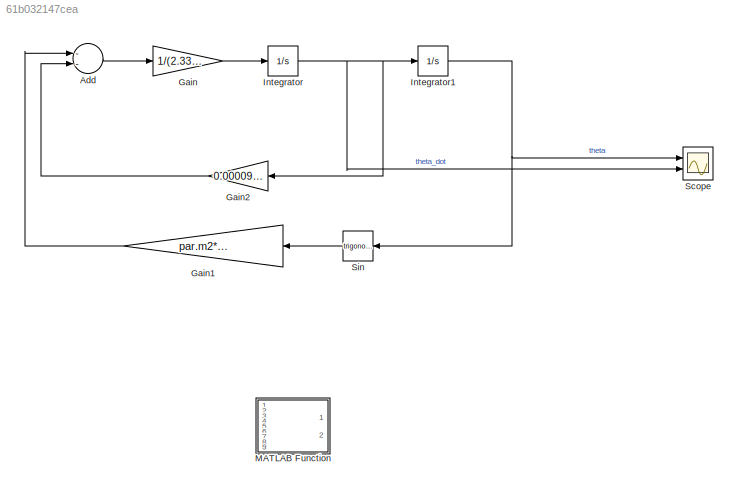
MODEL slx_61b032147cea
KIND model
CONFIG AbsTol = auto
CONFIG EnableMultiTasking = off
CONFIG FixedStep = auto
CONFIG MaxStep = auto
CONFIG MinStep = auto
CONFIG RelTol = 1e-3
CONFIG SampleTimeConstraint = Unconstrained
CONFIG Solver = VariableStepAuto
CONFIG SolverName = VariableStepAuto
CONFIG StartTime = 0.0
CONFIG StopTime = 60
BLOCK [Sum] Add
  InputSameDT = off
  Inputs = --
  OutDataTypeStr = Inherit: Inherit via internal rule
  Ports = [2, 1]
  SaturateOnIntegerOverflow = off
BLOCK [Gain] Gain
  Gain = 1/(2.3318e-4)
  OutDataTypeStr = Inherit: Inherit via internal rule
  ParamDataTypeStr = Inherit: Inherit via internal rule
  SaturateOnIntegerOverflow = off
BLOCK [Gain] Gain1
  Gain = par.m2*par.g*par.c2
  OutDataTypeStr = Inherit: Inherit via internal rule
  ParamDataTypeStr = Inherit: Inherit via internal rule
  SaturateOnIntegerOverflow = off
BLOCK [Gain] Gain2
  Gain = 0.000093842
  OutDataTypeStr = Inherit: Inherit via internal rule
  ParamDataTypeStr = Inherit: Inherit via internal rule
  SaturateOnIntegerOverflow = off
BLOCK [Integrator] Integrator
  Ports = [1, 1]
BLOCK [Integrator] Integrator1
  InitialCondition = -pi/2
  Ports = [1, 1]
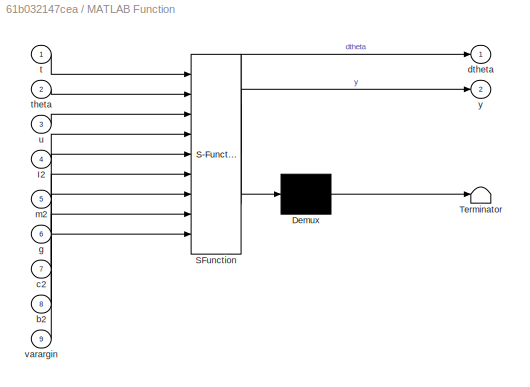
BLOCK [SubSystem] MATLAB Function
  ErrorFcn = Stateflow.Translate.translate
  PermitHierarchicalResolution = ExplicitOnly
  Ports = [9, 2]
  RequestExecContextInheritance = off
  SFBlockType = MATLAB Function
  TreatAsAtomicUnit = on
BLOCK [Demux] MATLAB Function/ Demux 
  Outputs = 1
  Ports = [1, 1]
BLOCK [S-Function] MATLAB Function/ SFunction 
  EnableBusSupport = off
  FunctionName = sf_sfun
  PortCounts = [9 3]
  Ports = [9, 3]
  SFcnIsStateOwnerBlock = off
  SFunctionDeploymentMode = off
  Tag = Stateflow S-Function ModID_b2_R2018A 2
BLOCK [Terminator] MATLAB Function/ Terminator 
BLOCK [Inport] MATLAB Function/I2
  IconDisplay = Port number
  Port = 4
BLOCK [Inport] MATLAB Function/b2
  IconDisplay = Port number
  Port = 8
BLOCK [Inport] MATLAB Function/c2
  IconDisplay = Port number
  Port = 7
BLOCK [Outport] MATLAB Function/dtheta
  IconDisplay = Port number
BLOCK [Inport] MATLAB Function/g
  IconDisplay = Port number
  Port = 6
BLOCK [Inport] MATLAB Function/m2
  IconDisplay = Port number
  Port = 5
BLOCK [Inport] MATLAB Function/t
  IconDisplay = Port number
BLOCK [Inport] MATLAB Function/theta
  IconDisplay = Port number
  Port = 2
BLOCK [Inport] MATLAB Function/u
  IconDisplay = Port number
  Port = 3
BLOCK [Inport] MATLAB Function/varargin
  IconDisplay = Port number
  Port = 9
BLOCK [Outport] MATLAB Function/y
  IconDisplay = Port number
  Port = 2
BLOCK [Scope] Scope
  Floating = off
  NumInputPorts = 2
  Ports = [2]
  ScopeSpecificationString = Simulink.scopes.TimeScopeBlockCfg('CurrentConfiguration', extmgr.ConfigurationSet(extmgr.Configuration('Core','General UI',true),extmgr.Configuration('Core','Source UI',true),extmgr.Configuration('Sources','WiredSimulink',true),extmgr.Configuration('Visuals','Time Domain',true,'SerializedDisplays',{struct('MinYLimReal','-2.00175','MaxYLimReal','2.00425','YLabelReal','','MinYLimMag','0.00000','MaxY...<+1480ch>
BLOCK [Trigonometry] Sin
  Ports = [1, 1]
LINE Add:1 -> Gain:1
LINE Gain1:1 -> Add:1
LINE Gain2:1 -> Add:2
LINE Gain:1 -> Integrator:1
NET Integrator1:1 -> Scope:1, Sin:1
NET Integrator:1 -> Gain2:1, Integrator1:1, Scope:2
LINE Sin:1 -> Gain1:1
note: NET lines group one-source signal fan-out (src -> all destinations, sorted); 1:1 wires keep LINE
CHART MATLAB Function states=1 transitions=1
  STATE_LABEL 'eML_blk_kernel()'
  STATE_LABEL 'SCRIPT:\nfunction [dtheta,y] = nonlinmod(t,theta,u,I2,m2,g,c2,b2,varargin)\n\ndtheta(1) = theta(2);\ndtheta(2) = 1/I2*(-m2*g*c2*sin(theta(1))-b2*theta(2));\n\ny = theta(1);\nend\n'
